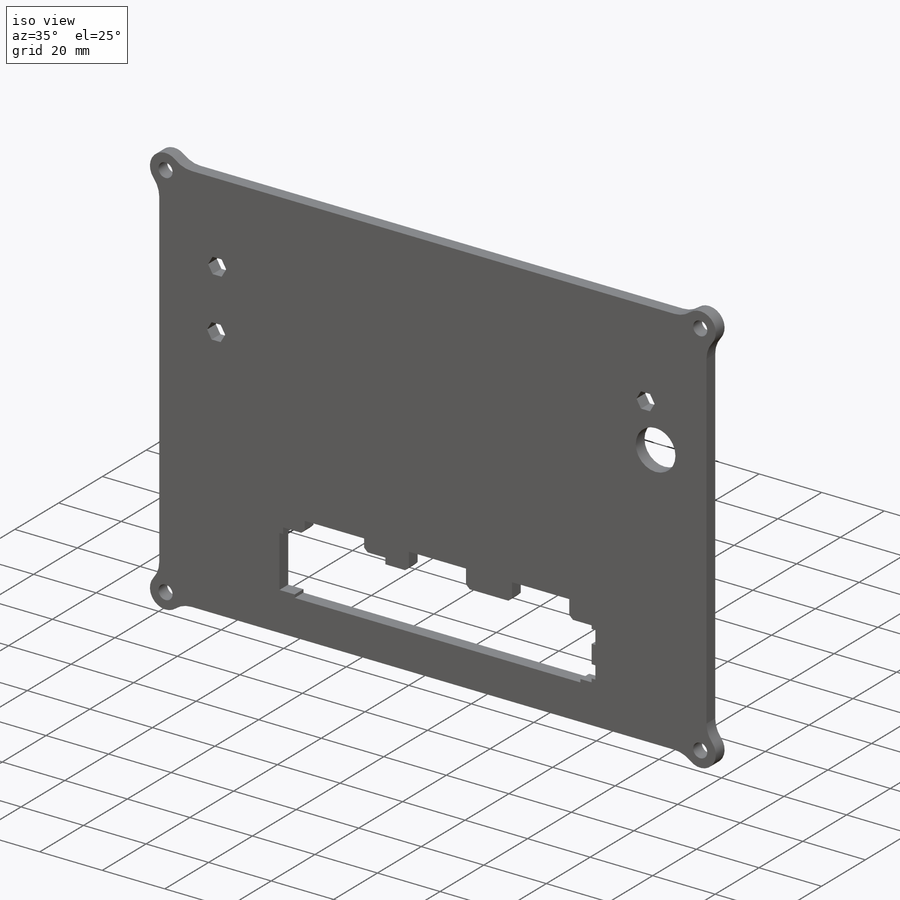
[diagram: iso view]
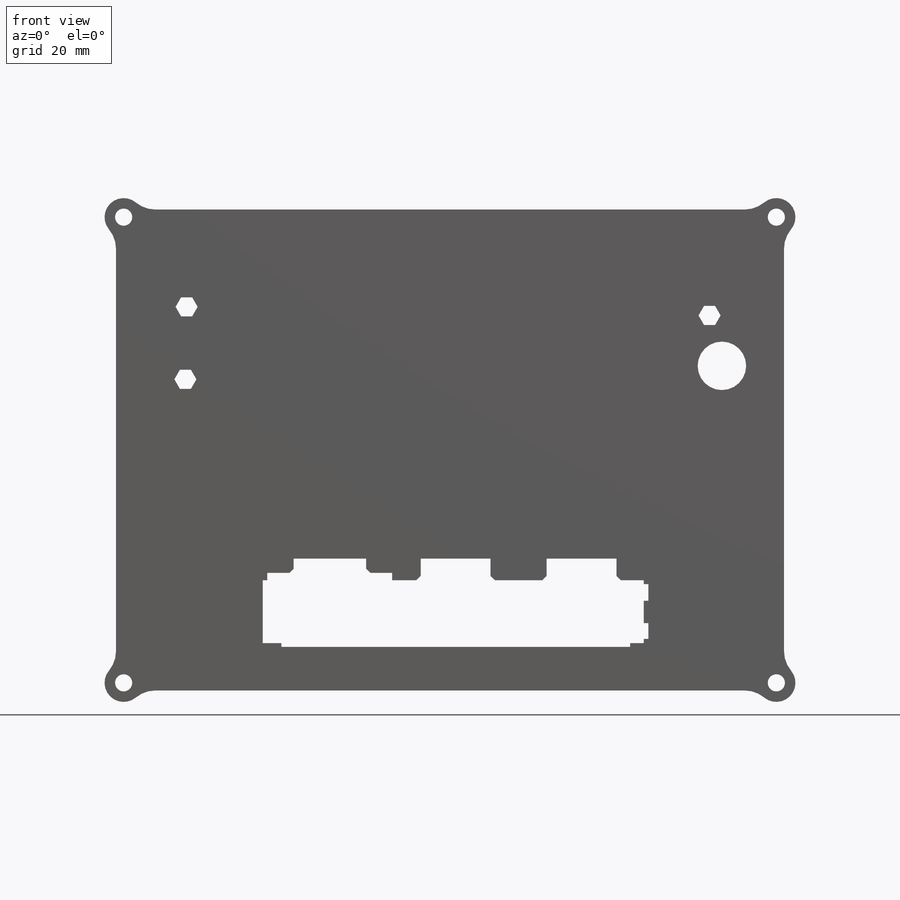
[diagram: front view]
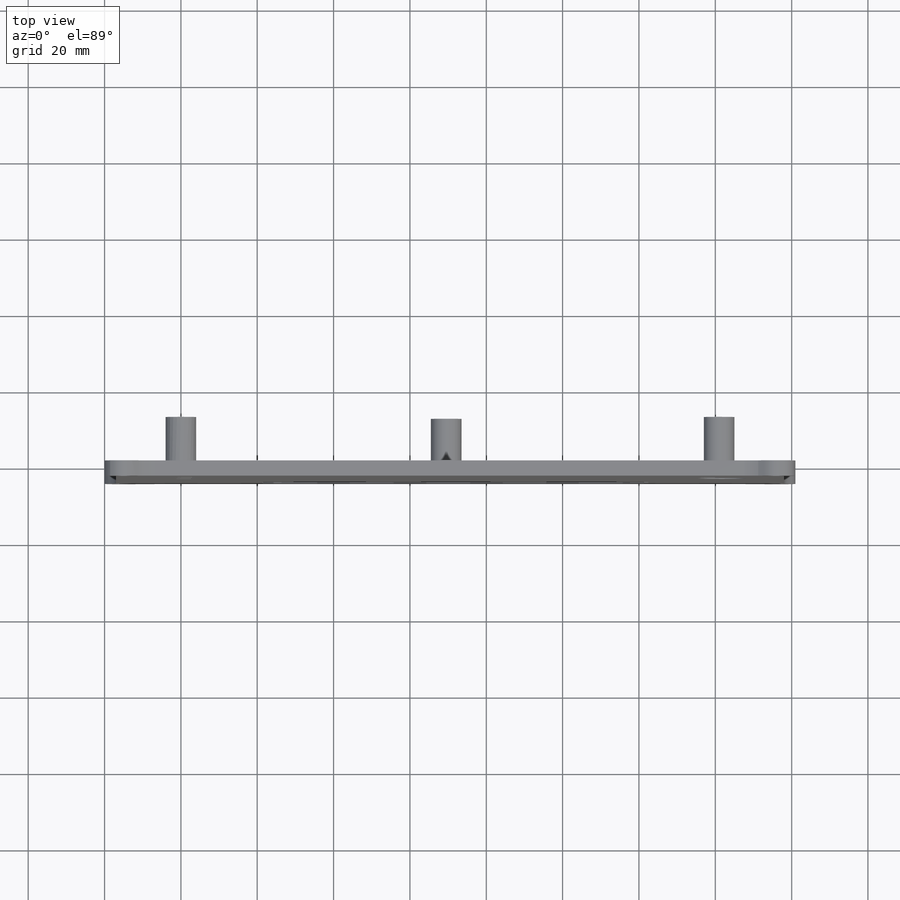
[diagram: top view]
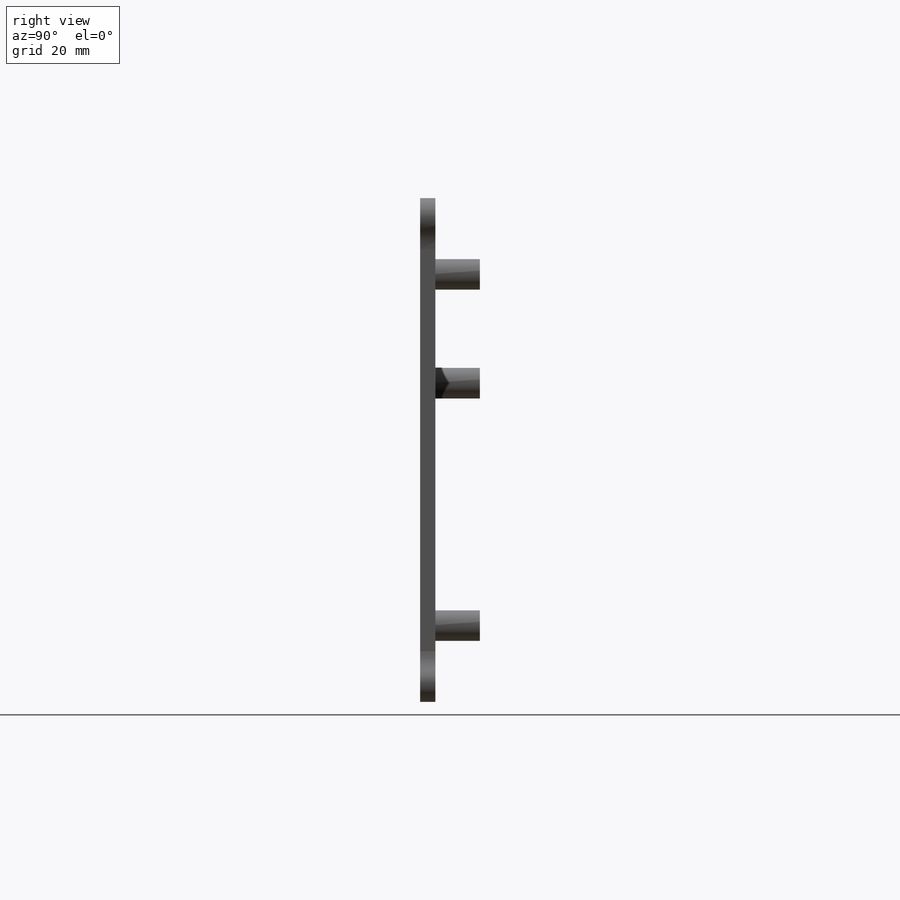
[diagram: right view]
SOLIDWORKS PART (.sldprt)
format: sldprt  version: not decoded by parser v0  size: 3,566,080 bytes
history: native  units: mm
features: sketch x10, hole x6, extrude x5, cut_extrude x4, material x1, shell x1, fillet x1 (+11 scaffold rows collapsed)
feature tree (39):
  scaffold x11  (default folders/planes/origin — collapsed)
  material  "Material <not specified>"
  sketch  "Sketch1"  dims[D1=0.0mm]
  extrude  "Boss-Extrude1"  Depth=4mm
  hole  "M4 Clearance Hole1"  Diameter=4.5mm Depth=19.05mm
  sketch  "Sketch3"
  sketch  "Sketch2"  dims[c1.D1=25.4mm c1.D2=93.98mm c1.4=25.4mm c1.D4=19.05mm c1.D7=33.02mm c1.D5=25.4mm c1.D3=50.8mm c1.D6=31.75mm c2.D5=58.42mm c2.D7=~8.980256mm c3.D7=90.0deg c3.D6=~2059.488517mm c3.D8=~8.980256mm c4.D8=~2059.488517mm c4.D9=~17.960512mm c5.D9=~2059.488517mm c5.D3=50.8mm c5.D4=31.75mm c5.D5=58.42mm c5.D6=~4.444873mm c6.D6=~2094.395102mm c6.D7=33.02mm c6.D8=~4.444873mm c7.D8=~1570.796327mm c7.D9=~14.816244mm c8.D9=~2059.488517mm c8.D1=12.7mm c8.D2=93.98mm c8.D3=25.4mm c9.D1=114.3mm c10.D1=~2356.19449mm c11.D1=25.4mm c11.D2=93.98mm c11.D3=50.8mm c11.D4=~17.960512mm c12.D4=~1431.169987mm c12.D5=~14.816244mm c13.D5=~2059.488517mm c13.D6=12.7mm c13.D1=25.4mm c13.D2=93.98mm c13.D3=31.75mm c13.D4=~33.297463mm c14.D4=~2094.395102mm c14.D5=~14.816244mm c15.D5=~2059.488517mm c15.Hole Dia.=4.5mm c15.Hole Depth=19.05mm c15.D3=~14.816244mm c15.Drill Angle=~2059.488517mm]  [1 undecoded]
  hole  "346900200<1>@BodyControllerAssy_V21"  [1 undecoded]
  hole  "347720140<1>@BodyControllerAssy_V21"  [1 undecoded]
  sketch  "Sketch5"
  cut_extrude  "Cut-Extrude1"  [1 undecoded]
  sketch  "Sketch6"  dims[D1=0.5mm]
  cut_extrude  "Cut-Extrude2"  [1 undecoded]
  extrude  "Cavity2"  [1 undecoded]
  hole  "93590A103_18-8 SS HEX CPLG NUT<1>@BodyControllerAssy_V21"  [1 undecoded]
  hole  "93590A103_18-8 SS HEX CPLG NUT<7>@BodyControllerAssy_V21"  [1 undecoded]
  hole  "93590A103_18-8 SS HEX CPLG NUT<4>@BodyControllerAssy_V21"  [1 undecoded]
  sketch  "Sketch8"  dims[D1=12.7mm]
  cut_extrude  "Cut-Extrude3"  [1 undecoded]
  shell  "Shell1"  Thickness=2mm
  sketch  "Sketch7"  dims[D1=7.0mm]
  extrude  "Boss-Extrude3"  [1 undecoded]
  sketch  "Sketch10"
  extrude  "Boss-Extrude10"  [1 undecoded]
  sketch  "Sketch9"  dims[D1=8.0mm]
  extrude  "Boss-Extrude9"  Depth=0.4mm
  fillet  "Fillet1"  Radius=0.75mm
  sketch  "Sketch12"  dims[D1=4.0mm]
  cut_extrude  "Cut-Extrude4"  Depth=1mm
decode coverage: 13 of 27 modeling features carry decoded parameters
note: ~ marks probable driven/reference dimensions
note: 11 parameter values undecoded
summary: no parameter record found for 11 features
note: suppression state not decoded; provenance and decode notes live in map.json
note: 1 required parameter value undecoded (feature->parameter linkage not recoverable at this tier; creation-order binding heuristic only, values carry confidence <= 0.55)
